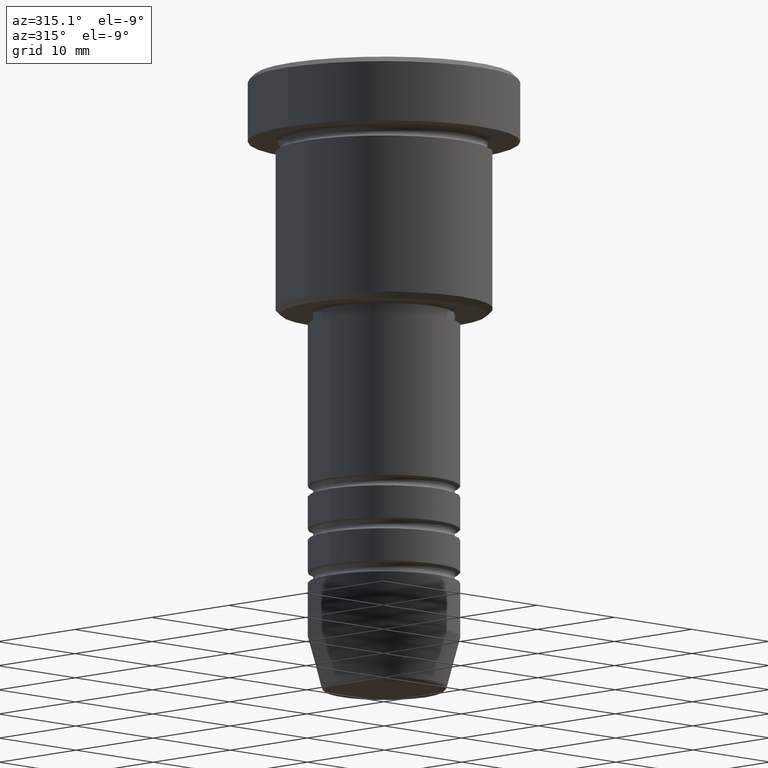
[diagram: clean part render]
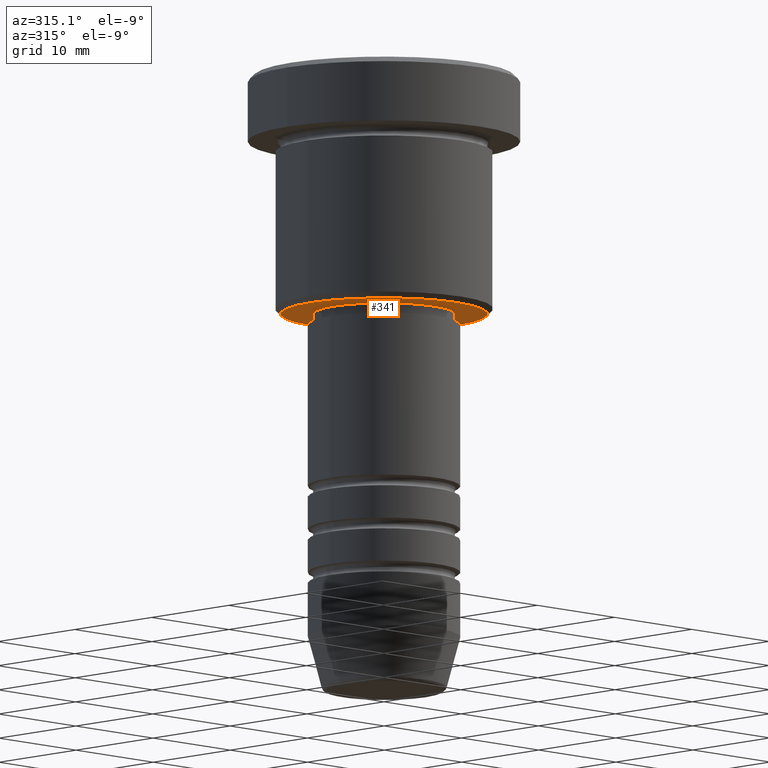
[diagram: same view with one face highlighted and labeled with its STEP entity id]
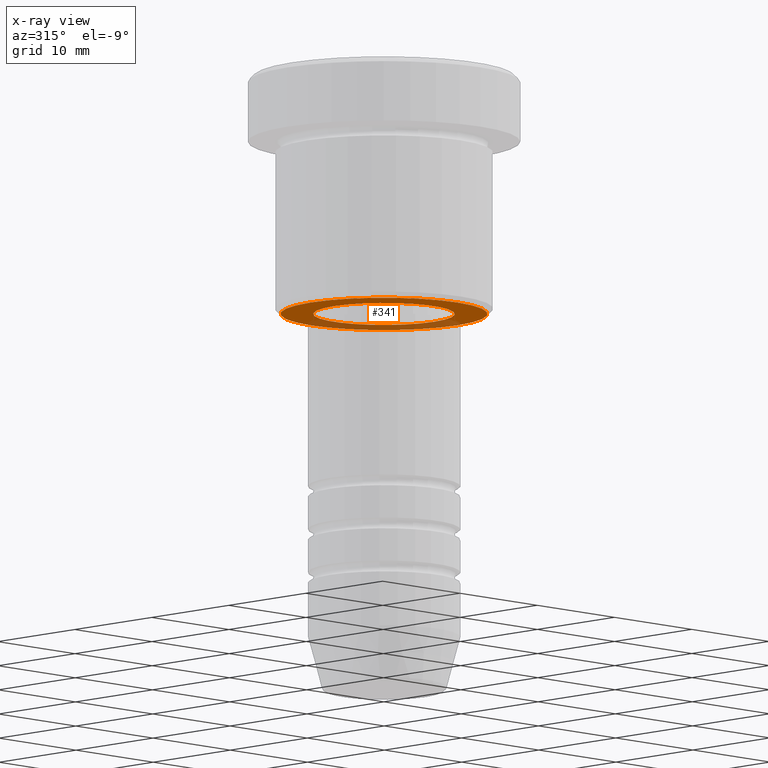
[diagram: x-ray of the same camera — body ghosted, the highlighted face saturated]
A machine part, auxiliary view. The second image highlights one B-rep face of the part: STEP entity #341.
The next image is the same camera in x-ray: the body ghosted, the highlighted face saturated — about 30% of this face is hidden behind the body in this view.
In plain terms, the highlighted planar face has unit normal (0, 0, -1).
Its self-contained STEP definition (entity closure, byte-faithful):
#2 = EDGE_LOOP ( 'NONE', ( #812, #1119 ) ) ;
#49 = CIRCLE ( 'NONE', #800, 9.499999999999994671 ) ;
#78 = DIRECTION ( 'NONE',  ( -1.000000000000000000, 0.000000000000000000, -0.000000000000000000 ) ) ;
#88 = CIRCLE ( 'NONE', #237, 6.500000000000000000 ) ;
#96 = VERTEX_POINT ( 'NONE', #346 ) ;
#144 = EDGE_CURVE ( 'NONE', #96, #669, #162, .T. ) ;
#162 = CIRCLE ( 'NONE', #374, 9.499999999999994671 ) ;
#167 = PLANE ( 'NONE',  #1120 ) ;
#181 = EDGE_CURVE ( 'NONE', #1007, #608, #88, .T. ) ;
#237 = AXIS2_PLACEMENT_3D ( 'NONE', #823, #546, #649 ) ;
#292 = CARTESIAN_POINT ( 'NONE',  ( 9.499999999999994671, 0.000000000000000000, -22.00000000000000000 ) ) ;
#328 = CARTESIAN_POINT ( 'NONE',  ( 0.000000000000000000, 0.000000000000000000, -22.00000000000000000 ) ) ;
#341 = ADVANCED_FACE ( 'NONE', ( #1166, #993 ), #167, .T. ) ;
#346 = CARTESIAN_POINT ( 'NONE',  ( -9.499999999999994671, 1.194030629168669075E-15, -22.00000000000000000 ) ) ;
#374 = AXIS2_PLACEMENT_3D ( 'NONE', #1100, #737, #1003 ) ;
#403 = DIRECTION ( 'NONE',  ( 1.000000000000000000, 0.000000000000000000, 0.000000000000000000 ) ) ;
#406 = EDGE_CURVE ( 'NONE', #669, #96, #49, .T. ) ;
#523 = EDGE_CURVE ( 'NONE', #608, #1007, #1090, .T. ) ;
#540 = CARTESIAN_POINT ( 'NONE',  ( 0.000000000000000000, 10.00000000000000000, -22.00000000000000000 ) ) ;
#546 = DIRECTION ( 'NONE',  ( -0.000000000000000000, -0.000000000000000000, 1.000000000000000000 ) ) ;
#608 = VERTEX_POINT ( 'NONE', #887 ) ;
#649 = DIRECTION ( 'NONE',  ( 1.000000000000000000, 0.000000000000000000, 0.000000000000000000 ) ) ;
#663 = CARTESIAN_POINT ( 'NONE',  ( -6.500000000000000000, 7.960204194457795477E-16, -22.00000000000000000 ) ) ;
#669 = VERTEX_POINT ( 'NONE', #292 ) ;
#716 = ORIENTED_EDGE ( 'NONE', *, *, #181, .T. ) ;
#730 = AXIS2_PLACEMENT_3D ( 'NONE', #328, #878, #403 ) ;
#737 = DIRECTION ( 'NONE',  ( 0.000000000000000000, 0.000000000000000000, -1.000000000000000000 ) ) ;
#800 = AXIS2_PLACEMENT_3D ( 'NONE', #1080, #894, #910 ) ;
#812 = ORIENTED_EDGE ( 'NONE', *, *, #406, .T. ) ;
#823 = CARTESIAN_POINT ( 'NONE',  ( 0.000000000000000000, 0.000000000000000000, -22.00000000000000000 ) ) ;
#878 = DIRECTION ( 'NONE',  ( -0.000000000000000000, -0.000000000000000000, 1.000000000000000000 ) ) ;
#887 = CARTESIAN_POINT ( 'NONE',  ( 6.500000000000000000, 0.000000000000000000, -22.00000000000000000 ) ) ;
#894 = DIRECTION ( 'NONE',  ( 0.000000000000000000, 0.000000000000000000, -1.000000000000000000 ) ) ;
#910 = DIRECTION ( 'NONE',  ( -1.000000000000000000, 0.000000000000000000, 0.000000000000000000 ) ) ;
#913 = DIRECTION ( 'NONE',  ( 0.000000000000000000, 0.000000000000000000, -1.000000000000000000 ) ) ;
#985 = EDGE_LOOP ( 'NONE', ( #1001, #716 ) ) ;
#993 = FACE_BOUND ( 'NONE', #985, .T. ) ;
#1001 = ORIENTED_EDGE ( 'NONE', *, *, #523, .T. ) ;
#1003 = DIRECTION ( 'NONE',  ( -1.000000000000000000, 0.000000000000000000, 0.000000000000000000 ) ) ;
#1007 = VERTEX_POINT ( 'NONE', #663 ) ;
#1080 = CARTESIAN_POINT ( 'NONE',  ( 0.000000000000000000, 0.000000000000000000, -22.00000000000000000 ) ) ;
#1090 = CIRCLE ( 'NONE', #730, 6.500000000000000000 ) ;
#1100 = CARTESIAN_POINT ( 'NONE',  ( 0.000000000000000000, 0.000000000000000000, -22.00000000000000000 ) ) ;
#1119 = ORIENTED_EDGE ( 'NONE', *, *, #144, .T. ) ;
#1120 = AXIS2_PLACEMENT_3D ( 'NONE', #540, #913, #78 ) ;
#1166 = FACE_OUTER_BOUND ( 'NONE', #2, .T. ) ;